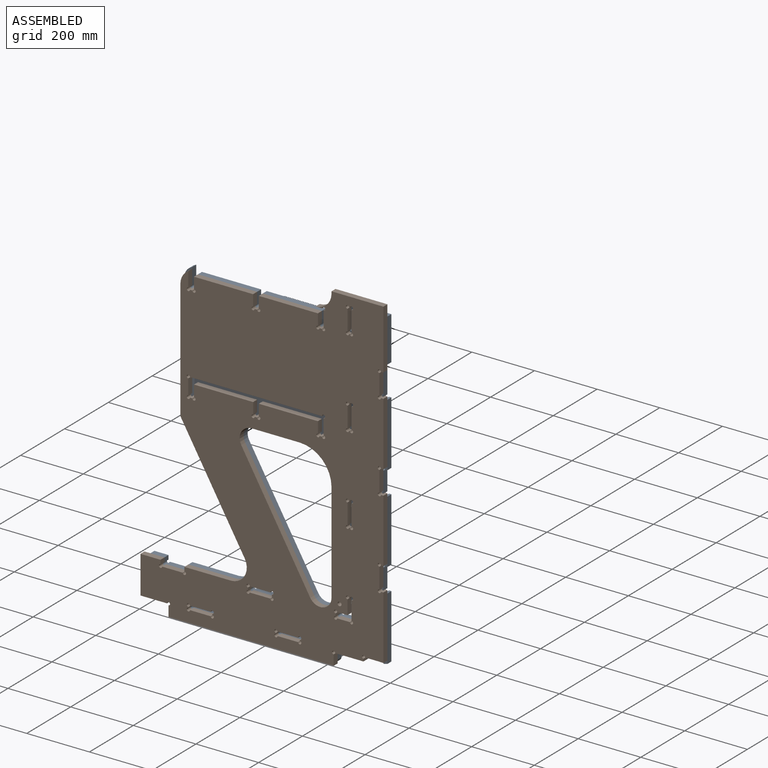
[diagram: assembled view]
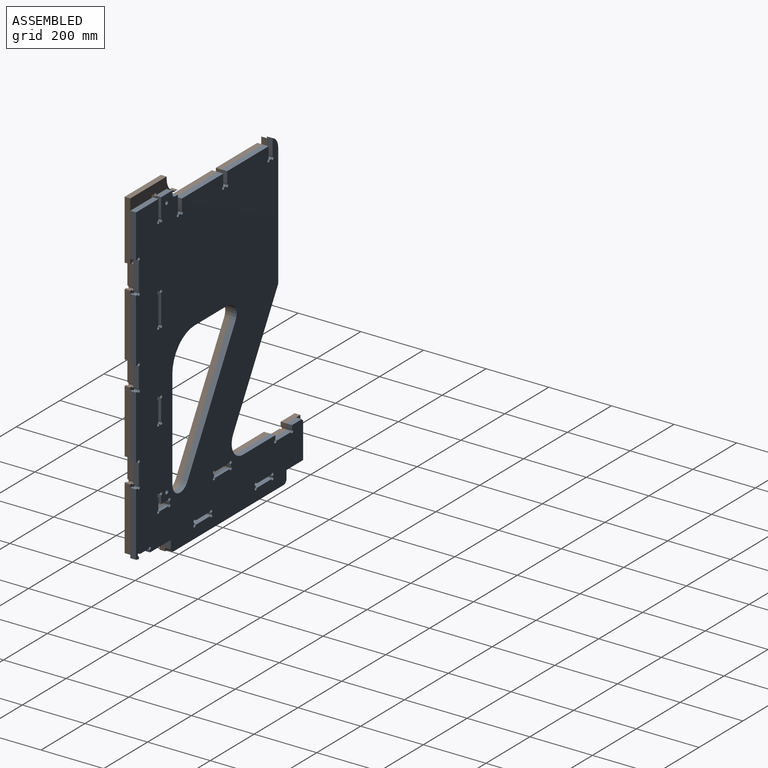
[diagram: assembled view, second angle]
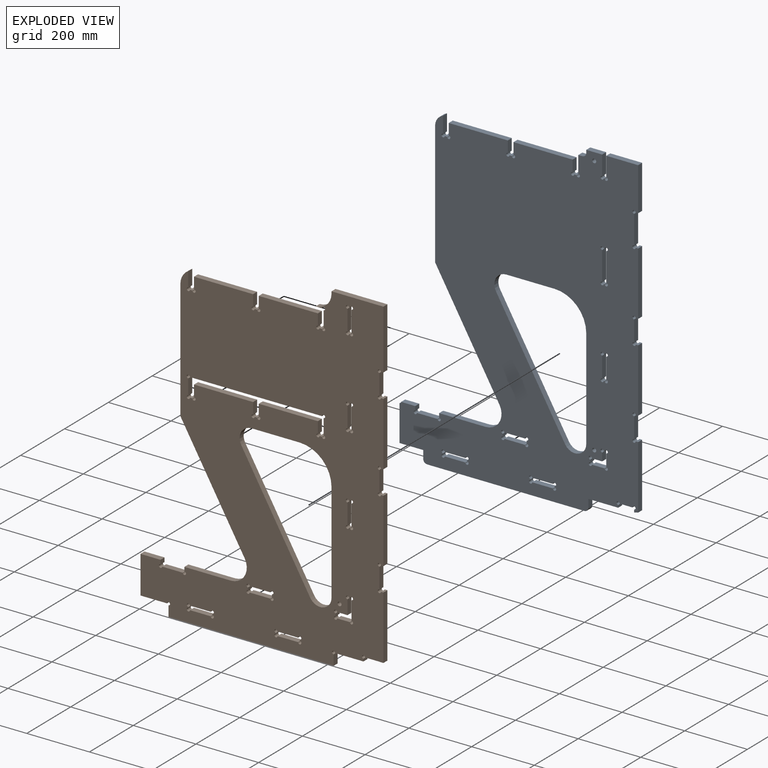
[diagram: exploded view]
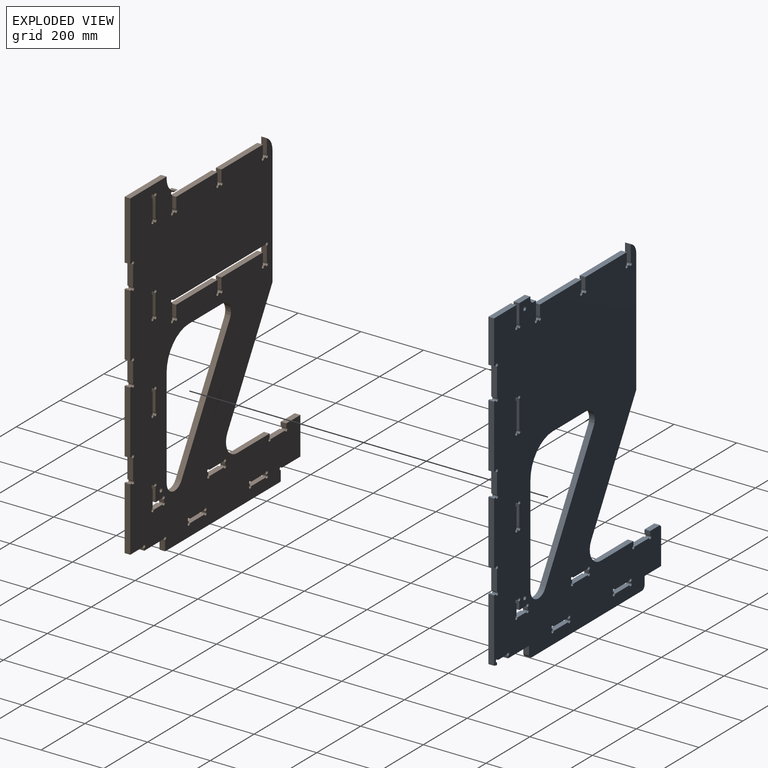
[diagram: exploded view, second angle]
ASSEMBLY  parts=2 mates=2
PART A: 133 faces, bbox 761.7x18.2x1043.4 mm
  f0: plane 381.88x220.48mm, normal (0.87,0,0.5), area 8030.6mm2, adj f38,f39,f71,f129
  f1: plane 18.21x2.79mm, normal (0,0,-1), area 50.9mm2, adj f38,f39,f103,f120
  f2: plane 91.44x18.21mm, normal (1,0,0), area 1665.3mm2, adj f38,f39,f102,f103
  f3: plane 18.21x2.79mm, normal (0,0,1), area 50.9mm2, adj f38,f39,f102,f108
  f4: plane 91.44x18.21mm, normal (-1,0,0), area 1665.3mm2, adj f38,f39,f108,f120
  f5: plane 18.21x2.79mm, normal (0,0,-1), area 50.9mm2, adj f38,f39,f116,f117
  f6: plane 66.04x18.21mm, normal (1,0,0), area 1202.7mm2, adj f38,f39,f117,f119
  f7: plane 18.21x2.79mm, normal (0,0,1), area 50.9mm2, adj f38,f39,f118,f119
  f8: plane 66.04x18.21mm, normal (-1,0,0), area 1202.7mm2, adj f38,f39,f116,f118
  f9: plane 66.04x18.21mm, normal (0,0,1), area 1202.7mm2, adj f38,f39,f90,f95
  f10: plane 18.21x2.79mm, normal (-1,0,0), area 50.9mm2, adj f38,f39,f90,f106
  f11: plane 66.04x18.21mm, normal (0,0,-1), area 1202.7mm2, adj f38,f39,f105,f106
  f12: plane 18.21x2.79mm, normal (1,0,0), area 50.9mm2, adj f38,f39,f95,f105
  f13: plane 18.21x7.87mm, normal (0,0,-1), area 143.4mm2, adj f38,f39,f51,f114
  f14: plane 91.44x18.21mm, normal (1,0,0), area 1665.3mm2, adj f38,f39,f113,f114
  f15: plane 66.04x18.21mm, normal (1,0,0), area 1202.7mm2, adj f38,f39,f86,f112
  f16: plane 66.04x18.21mm, normal (1,0,0), area 1202.7mm2, adj f38,f39,f91,f92
  f17: plane 18.21x7.87mm, normal (-1,0,0), area 143.4mm2, adj f38,f39,f60,f87
  f18: plane 40.64x18.21mm, normal (0,0,-1), area 740.1mm2, adj f38,f39,f87,f104
  f19: plane 18.21x2.79mm, normal (1,0,0), area 50.9mm2, adj f38,f39,f89,f101
  f20: plane 66.04x18.21mm, normal (0,0,1), area 1202.7mm2, adj f38,f39,f88,f89
  f21: plane 18.21x2.79mm, normal (-1,0,0), area 50.9mm2, adj f38,f39,f88,f111
  f22: plane 66.04x18.21mm, normal (0,0,-1), area 1202.7mm2, adj f38,f39,f101,f111
  f23: plane 18.21x2.79mm, normal (0,0,1), area 50.9mm2, adj f38,f39,f115,f121
  f24: plane 45.13x18.21mm, normal (0,0,1), area 821.8mm2, adj f38,f39,f64,f85
  f25: plane 66.04x18.21mm, normal (0,0,1), area 1202.7mm2, adj f38,f39,f82,f107
  f26: plane 18.21x8.05mm, normal (1,0,0), area 146.6mm2, adj f38,f39,f100,f110
  f27: plane 66.04x18.21mm, normal (0,0,1), area 1202.7mm2, adj f38,f39,f109,f110
  f28: plane 18.21x8.05mm, normal (-1,0,0), area 146.6mm2, adj f38,f39,f96,f109
  f29: plane 66.04x18.21mm, normal (0,0,-1), area 1202.7mm2, adj f38,f39,f96,f100
  f30: plane 38.77x18.21mm, normal (-1,0,0), area 706mm2, adj f38,f39,f84,f126
  f31: plane 18.21x2.79mm, normal (0,0,-1), area 50.9mm2, adj f38,f39,f83,f84
  f32: plane 32.77x18.21mm, normal (0,0,-1), area 596.7mm2, adj f38,f39,f72,f125
  f33: plane 18.21x8.05mm, normal (1,0,0), area 146.6mm2, adj f38,f39,f124,f125
  f34: plane 40.64x18.21mm, normal (0,0,1), area 740.1mm2, adj f38,f39,f124,f126
  f35: plane 18.21x8.05mm, normal (0,0,1), area 146.6mm2, adj f38,f39,f98,f123
  f36: plane 18.21x8.05mm, normal (0,0,1), area 146.6mm2, adj f38,f39,f99,f122
  f37: plane 18.21x8.05mm, normal (0,0,1), area 146.6mm2, adj f38,f39,f97,f127
  f38: plane 1043.44x761.66mm, normal (0,1,0), area 513310.2mm2, adj f0,f1,f2,f3,f4,f5,f6,f7
  f39: plane 1043.44x761.66mm, normal (0,-1,0), area 513310.2mm2, adj f0,f1,f2,f3,f4,f5,f6,f7
  f40: plane 355.6x205.31mm, normal (-0.87,0,-0.5), area 7478mm2, adj f38,f39,f67,f81
  f41: plane 18.21x12.7mm, normal (0,0,1), area 231.3mm2, adj f38,f39,f79,f130
  f42: plane 50.8x18.21mm, normal (0,0,1), area 925.2mm2, adj f38,f39,f61,f63
  f43: plane 101.85x18.21mm, normal (0,0,1), area 1854.9mm2, adj f38,f39,f51,f62
  f44: plane 114.99x18.21mm, normal (-1,0,0), area 2094.1mm2, adj f38,f39,f50,f85
  f45: plane 18.21x7.87mm, normal (1,0,0), area 143.4mm2, adj f38,f39,f46,f104
  f46: plane 95.25x18.21mm, normal (0,0,-1), area 1734.7mm2, adj f38,f39,f45,f47
  f47: plane 25.4x18.21mm, normal (1,0,0), area 462.6mm2, adj f38,f39,f46,f132
  f48: plane 501.65x18.21mm, normal (0,0,-1), area 9135.9mm2, adj f38,f39,f131,f132
  f49: plane 25.4x18.21mm, normal (-1,0,0), area 462.6mm2, adj f38,f39,f50,f131
  f50: plane 75.61x18.21mm, normal (0,0,-1), area 1376.9mm2, adj f38,f39,f44,f49
  f51: plane 138.69x18.21mm, normal (1,0,0), area 2525.8mm2, adj f13,f38,f39,f43
  f52: plane 18.21x7.87mm, normal (0,0,1), area 143.4mm2, adj f38,f39,f53,f113
  f53: plane 203.2x18.21mm, normal (1,0,0), area 3700.6mm2, adj f38,f39,f52,f54
  f54: plane 18.21x7.87mm, normal (0,0,-1), area 143.4mm2, adj f38,f39,f53,f112
  f55: plane 18.21x7.87mm, normal (0,0,1), area 143.4mm2, adj f38,f39,f56,f86
  f56: plane 203.2x18.21mm, normal (1,0,0), area 3700.6mm2, adj f38,f39,f55,f57
  f57: plane 18.21x7.87mm, normal (0,0,-1), area 143.4mm2, adj f38,f39,f56,f92
  f58: plane 18.21x7.87mm, normal (0,0,1), area 143.4mm2, adj f38,f39,f59,f91
  f59: plane 203.2x18.21mm, normal (1,0,0), area 3700.6mm2, adj f38,f39,f58,f60
  f60: plane 18.21x12.95mm, normal (0.23,0,-0.97), area 242.4mm2, adj f17,f38,f39,f59
  f61: plane 62.08x18.21mm, normal (1,0,0), area 1130.6mm2, adj f38,f39,f42,f115
  f62: plane 62.08x18.21mm, normal (-1,0,0), area 1130.6mm2, adj f38,f39,f43,f121
  f63: plane 18.21x8.98mm, normal (-1,0,0), area 163.4mm2, adj f38,f39,f42,f130
  f64: plane 18.21x13.13mm, normal (1,0,0), area 239.2mm2, adj f24,f38,f39,f107
  f65: plane 18.21x13.13mm, normal (-1,0,0), area 239.2mm2, adj f38,f39,f66,f82
  f66: plane 148.36x18.21mm, normal (0,0,1), area 2701.9mm2, adj f38,f39,f65,f81
  f67: plane 393.7x18.21mm, normal (-1,0,0), area 7170mm2, adj f38,f39,f40,f68
  f68: cylinder r=38.1mm len=35.92mm, axis (0,-1,0), area 854.1mm2, adj f38,f39,f67,f80
  f69: plane 319.26x18.21mm, normal (-1,0,0), area 5814.3mm2, adj f38,f39,f128,f129
  f70: plane 153.7x18.21mm, normal (0,0,-1), area 2799.1mm2, adj f38,f39,f71,f128
  f71: cylinder r=38.1mm len=57.15mm, axis (0,-1,0), area 1453.2mm2, adj f0,f38,f39,f70
  f72: plane 25.63x18.21mm, normal (1,0,0), area 466.9mm2, adj f32,f38,f39,f83
  f73: plane 36.2x18.21mm, normal (-1,0,0), area 659.2mm2, adj f38,f39,f74,f127
  f74: plane 188.58x18.21mm, normal (0,0,1), area 3434.4mm2, adj f38,f39,f73,f75
  f75: plane 36.2x18.21mm, normal (1,0,0), area 659.2mm2, adj f38,f39,f74,f98
  f76: plane 36.2x18.21mm, normal (-1,0,0), area 659.2mm2, adj f38,f39,f77,f123
  f77: plane 188.58x18.21mm, normal (0,0,1), area 3434.4mm2, adj f38,f39,f76,f78
  f78: plane 36.2x18.21mm, normal (1,0,0), area 659.2mm2, adj f38,f39,f77,f99
  f79: plane 54.41x18.21mm, normal (-1,0,0), area 990.8mm2, adj f38,f39,f41,f122
  f80: plane 52.23x18.21mm, normal (1,0,0), area 951.2mm2, adj f38,f39,f68,f97
  f81: cylinder r=50.8mm len=76.2mm, axis (0,-1,0), area 1937.6mm2, adj f38,f39,f40,f66
  f82: cylinder r=5.08mm len=18.21mm, axis (0,1,0), area 436mm2, adj f25,f38,f39,f65
  f83: cylinder r=5.08mm len=18.21mm, axis (0,1,0), area 436mm2, adj f31,f38,f39,f72
  f84: cylinder r=5.08mm len=18.21mm, axis (0,1,0), area 436mm2, adj f30,f31,f38,f39
  f85: cylinder r=5.08mm len=18.21mm, axis (0,1,0), area 145.3mm2, adj f24,f38,f39,f44
  f86: cylinder r=5.08mm len=18.21mm, axis (0,1,0), area 436mm2, adj f15,f38,f39,f55
  f87: cylinder r=5.08mm len=18.21mm, axis (0,1,0), area 436mm2, adj f17,f18,f38,f39
  f88: cylinder r=5.08mm len=18.21mm, axis (0,1,0), area 436mm2, adj f20,f21,f38,f39
  f89: cylinder r=5.08mm len=18.21mm, axis (0,1,0), area 436mm2, adj f19,f20,f38,f39
  f90: cylinder r=5.08mm len=18.21mm, axis (0,1,0), area 436mm2, adj f9,f10,f38,f39
  f91: cylinder r=5.08mm len=18.21mm, axis (0,1,0), area 436mm2, adj f16,f38,f39,f58
  f92: cylinder r=5.08mm len=18.21mm, axis (0,1,0), area 436mm2, adj f16,f38,f39,f57
  f93: cylinder r=6.35mm len=18.21mm, axis (0,1,0), area 726.6mm2, adj f38,f39
  f94: cylinder r=6.35mm len=18.21mm, axis (0,1,0), area 726.6mm2, adj f38,f39
  f95: cylinder r=5.08mm len=18.21mm, axis (0,1,0), area 436mm2, adj f9,f12,f38,f39
  f96: cylinder r=5.08mm len=18.21mm, axis (0,1,0), area 436mm2, adj f28,f29,f38,f39
  f97: cylinder r=5.08mm len=18.21mm, axis (0,1,0), area 436mm2, adj f37,f38,f39,f80
  f98: cylinder r=5.08mm len=18.21mm, axis (0,1,0), area 436mm2, adj f35,f38,f39,f75
  f99: cylinder r=5.08mm len=18.21mm, axis (0,1,0), area 436mm2, adj f36,f38,f39,f78
  f100: cylinder r=5.08mm len=18.21mm, axis (0,1,0), area 436mm2, adj f26,f29,f38,f39
  f101: cylinder r=5.08mm len=18.21mm, axis (0,1,0), area 436mm2, adj f19,f22,f38,f39
  f102: cylinder r=5.08mm len=18.21mm, axis (0,1,0), area 436mm2, adj f2,f3,f38,f39
  f103: cylinder r=5.08mm len=18.21mm, axis (0,1,0), area 436mm2, adj f1,f2,f38,f39
  f104: cylinder r=5.08mm len=18.21mm, axis (0,1,0), area 436mm2, adj f18,f38,f39,f45
  f105: cylinder r=5.08mm len=18.21mm, axis (0,1,0), area 436mm2, adj f11,f12,f38,f39
  f106: cylinder r=5.08mm len=18.21mm, axis (0,1,0), area 436mm2, adj f10,f11,f38,f39
  f107: cylinder r=5.08mm len=18.21mm, axis (0,1,0), area 436mm2, adj f25,f38,f39,f64
  f108: cylinder r=5.08mm len=18.21mm, axis (0,1,0), area 436mm2, adj f3,f4,f38,f39
  f109: cylinder r=5.08mm len=18.21mm, axis (0,1,0), area 436mm2, adj f27,f28,f38,f39
  f110: cylinder r=5.08mm len=18.21mm, axis (0,1,0), area 436mm2, adj f26,f27,f38,f39
  f111: cylinder r=5.08mm len=18.21mm, axis (0,1,0), area 436mm2, adj f21,f22,f38,f39
  f112: cylinder r=5.08mm len=18.21mm, axis (0,1,0), area 436mm2, adj f15,f38,f39,f54
  f113: cylinder r=5.08mm len=18.21mm, axis (0,1,0), area 436mm2, adj f14,f38,f39,f52
  f114: cylinder r=5.08mm len=18.21mm, axis (0,1,0), area 436mm2, adj f13,f14,f38,f39
  f115: cylinder r=5.08mm len=18.21mm, axis (0,1,0), area 436mm2, adj f23,f38,f39,f61
  f116: cylinder r=5.08mm len=18.21mm, axis (0,1,0), area 436mm2, adj f5,f8,f38,f39
  f117: cylinder r=5.08mm len=18.21mm, axis (0,1,0), area 436mm2, adj f5,f6,f38,f39
  f118: cylinder r=5.08mm len=18.21mm, axis (0,1,0), area 436mm2, adj f7,f8,f38,f39
  f119: cylinder r=5.08mm len=18.21mm, axis (0,1,0), area 436mm2, adj f6,f7,f38,f39
  f120: cylinder r=5.08mm len=18.21mm, axis (0,1,0), area 436mm2, adj f1,f4,f38,f39
  f121: cylinder r=5.08mm len=18.21mm, axis (0,1,0), area 436mm2, adj f23,f38,f39,f62
  f122: cylinder r=5.08mm len=18.21mm, axis (0,1,0), area 436mm2, adj f36,f38,f39,f79
  f123: cylinder r=5.08mm len=18.21mm, axis (0,1,0), area 436mm2, adj f35,f38,f39,f76
  f124: cylinder r=5.08mm len=18.21mm, axis (0,1,0), area 436mm2, adj f33,f34,f38,f39
  f125: cylinder r=5.08mm len=18.21mm, axis (0,1,0), area 436mm2, adj f32,f33,f38,f39
  f126: cylinder r=5.08mm len=18.21mm, axis (0,1,0), area 436mm2, adj f30,f34,f38,f39
  f127: cylinder r=5.08mm len=18.21mm, axis (0,1,0), area 436mm2, adj f37,f38,f39,f73
  f128: cylinder r=101.6mm len=101.6mm, axis (0,-1,0), area 2906.5mm2, adj f38,f39,f69,f70
  f129: cylinder r=36.34mm len=67.81mm, axis (0,-1,0), area 1732.7mm2, adj f0,f38,f39,f69
  f130: cylinder r=12.7mm len=18.21mm, axis (0,-1,0), area 363.3mm2, adj f38,f39,f41,f63
  f131: cylinder r=12.7mm len=18.21mm, axis (0,-1,0), area 363.3mm2, adj f38,f39,f48,f49
  f132: cylinder r=12.7mm len=18.21mm, axis (0,-1,0), area 363.3mm2, adj f38,f39,f47,f48
PART B: 153 faces, bbox 775.6x1078.8x18.2 mm
  f0: plane 1078.85x775.58mm, normal (0,0,1), area 510672.6mm2, adj f2,f3,f4,f5,f6,f7,f8,f9
  f1: plane 1078.85x775.58mm, normal (0,0,-1), area 510672.6mm2, adj f2,f3,f4,f5,f6,f7,f8,f9
  f2: plane 319.26x18.21mm, normal (1,0,0), area 5814.3mm2, adj f0,f1,f62,f67
  f3: plane 148.36x18.21mm, normal (0,1,0), area 2701.9mm2, adj f0,f1,f34,f70
  f4: plane 120.07x18.21mm, normal (1,0,0), area 2186.6mm2, adj f0,f1,f27,f29
  f5: plane 165.61x18.21mm, normal (0,1,0), area 3016mm2, adj f0,f1,f26,f30
  f6: plane 33.02x18.21mm, normal (1,0,0), area 601.4mm2, adj f0,f1,f7,f144
  f7: plane 527.05x18.21mm, normal (0,-1,0), area 9598.5mm2, adj f0,f1,f6,f8
  f8: plane 33.02x18.21mm, normal (-1,0,0), area 601.4mm2, adj f0,f1,f7,f152
  f9: plane 90.17x18.21mm, normal (0,-1,0), area 1642.2mm2, adj f0,f1,f10,f152
  f10: plane 18.21x7.87mm, normal (-1,0,0), area 143.4mm2, adj f0,f1,f9,f151
  f11: plane 45.72x18.21mm, normal (0,-1,0), area 832.6mm2, adj f0,f1,f12,f151
  f12: plane 18.21x0.25mm, normal (1,0,0), area 4.6mm2, adj f0,f1,f11,f13
  f13: plane 18.21x12.95mm, normal (0,-1,0), area 235.9mm2, adj f0,f1,f12,f14
  f14: plane 203.2x18.21mm, normal (-1,0,0), area 3700.6mm2, adj f0,f1,f13,f15
  f15: plane 18.21x7.87mm, normal (0,1,0), area 143.4mm2, adj f0,f1,f14,f150
  f16: plane 66.04x18.21mm, normal (-1,0,0), area 1202.7mm2, adj f0,f1,f149,f150
  f17: plane 18.21x7.87mm, normal (0,-1,0), area 143.4mm2, adj f0,f1,f18,f149
  f18: plane 203.2x18.21mm, normal (-1,0,0), area 3700.6mm2, adj f0,f1,f17,f19
  f19: plane 18.21x7.87mm, normal (0,1,0), area 143.4mm2, adj f0,f1,f18,f148
  f20: plane 66.04x18.21mm, normal (-1,0,0), area 1202.7mm2, adj f0,f1,f147,f148
  f21: plane 18.21x7.87mm, normal (0,-1,0), area 143.4mm2, adj f0,f1,f22,f147
  f22: plane 203.2x18.21mm, normal (-1,0,0), area 3700.6mm2, adj f0,f1,f21,f23
  f23: plane 18.21x7.87mm, normal (0,1,0), area 143.4mm2, adj f0,f1,f22,f146
  f24: plane 66.04x18.21mm, normal (-1,0,0), area 1202.7mm2, adj f0,f1,f145,f146
  f25: plane 18.21x7.87mm, normal (0,-1,0), area 143.4mm2, adj f0,f1,f26,f145
  f26: plane 189.85x18.21mm, normal (-1,0,0), area 3457.4mm2, adj f0,f1,f5,f25
  f27: plane 84.45x18.21mm, normal (0,-1,0), area 1538mm2, adj f0,f1,f4,f144
  f28: plane 18.21x13.13mm, normal (-1,0,0), area 239.2mm2, adj f0,f1,f29,f140
  f29: plane 64.13x18.21mm, normal (0,1,0), area 1167.9mm2, adj f0,f1,f4,f28
  f30: plane 18.21x6.28mm, normal (1,0,0), area 114.4mm2, adj f0,f1,f5,f71
  f31: plane 18.21x8.05mm, normal (1,0,0), area 146.6mm2, adj f0,f1,f114,f143
  f32: plane 66.04x18.21mm, normal (0,1,0), area 1202.7mm2, adj f0,f1,f142,f143
  f33: plane 18.21x8.05mm, normal (-1,0,0), area 146.6mm2, adj f0,f1,f113,f142
  f34: plane 18.21x13.13mm, normal (1,0,0), area 239.2mm2, adj f0,f1,f3,f141
  f35: plane 66.04x18.21mm, normal (0,1,0), area 1202.7mm2, adj f0,f1,f140,f141
  f36: plane 32.77x18.21mm, normal (0,-1,0), area 596.7mm2, adj f0,f1,f37,f136
  f37: plane 45.72x18.21mm, normal (-1,0,0), area 832.6mm2, adj f0,f1,f36,f139
  f38: plane 18.21x2.79mm, normal (0,-1,0), area 50.9mm2, adj f0,f1,f138,f139
  f39: plane 58.85x18.21mm, normal (1,0,0), area 1071.8mm2, adj f0,f1,f137,f138
  f40: plane 40.64x18.21mm, normal (0,1,0), area 740.1mm2, adj f0,f1,f135,f137
  f41: plane 18.21x8.05mm, normal (-1,0,0), area 146.6mm2, adj f0,f1,f135,f136
  f42: plane 18.21x2.79mm, normal (0,1,0), area 50.9mm2, adj f0,f1,f132,f134
  f43: plane 66.04x18.21mm, normal (-1,0,0), area 1202.7mm2, adj f0,f1,f133,f134
  f44: plane 18.21x2.79mm, normal (0,-1,0), area 50.9mm2, adj f0,f1,f131,f133
  f45: plane 66.04x18.21mm, normal (1,0,0), area 1202.7mm2, adj f0,f1,f131,f132
  f46: plane 18.21x2.79mm, normal (0,1,0), area 50.9mm2, adj f0,f1,f127,f130
  f47: plane 66.04x18.21mm, normal (-1,0,0), area 1202.7mm2, adj f0,f1,f129,f130
  f48: plane 18.21x2.79mm, normal (0,-1,0), area 50.9mm2, adj f0,f1,f128,f129
  f49: plane 66.04x18.21mm, normal (1,0,0), area 1202.7mm2, adj f0,f1,f127,f128
  f50: plane 18.21x2.79mm, normal (-1,0,0), area 50.9mm2, adj f0,f1,f124,f126
  f51: plane 66.04x18.21mm, normal (0,-1,0), area 1202.7mm2, adj f0,f1,f125,f126
  f52: plane 18.21x2.79mm, normal (1,0,0), area 50.9mm2, adj f0,f1,f123,f125
  f53: plane 66.04x18.21mm, normal (0,1,0), area 1202.7mm2, adj f0,f1,f123,f124
  f54: plane 66.04x18.21mm, normal (0,1,0), area 1202.7mm2, adj f0,f1,f119,f122
  f55: plane 18.21x2.79mm, normal (-1,0,0), area 50.9mm2, adj f0,f1,f121,f122
  f56: plane 66.04x18.21mm, normal (0,-1,0), area 1202.7mm2, adj f0,f1,f120,f121
  f57: plane 18.21x2.79mm, normal (1,0,0), area 50.9mm2, adj f0,f1,f119,f120
  f58: plane 66.04x18.21mm, normal (1,0,0), area 1202.7mm2, adj f0,f1,f115,f118
  f59: plane 18.21x2.79mm, normal (0,1,0), area 50.9mm2, adj f0,f1,f117,f118
  f60: plane 66.04x18.21mm, normal (-1,0,0), area 1202.7mm2, adj f0,f1,f116,f117
  f61: plane 18.21x2.79mm, normal (0,-1,0), area 50.9mm2, adj f0,f1,f115,f116
  f62: cylinder r=36.34mm len=67.81mm, axis (0,0,-1), area 1732.7mm2, adj f0,f1,f2,f64
  f63: plane 66.04x18.21mm, normal (0,-1,0), area 1202.7mm2, adj f0,f1,f113,f114
  f64: plane 381.88x220.48mm, normal (-0.87,0.5,0), area 8030.6mm2, adj f0,f1,f62,f65
  f65: cylinder r=38.1mm len=57.15mm, axis (0,0,-1), area 1453.2mm2, adj f0,f1,f64,f66
  f66: plane 153.7x18.21mm, normal (0,-1,0), area 2799.1mm2, adj f0,f1,f65,f67
  f67: cylinder r=101.6mm len=101.6mm, axis (0,0,-1), area 2906.5mm2, adj f0,f1,f2,f66
  f68: plane 381x18.21mm, normal (1,0,0), area 6938.7mm2, adj f0,f1,f69,f72
  f69: plane 355.6x205.31mm, normal (0.87,-0.5,0), area 7478mm2, adj f0,f1,f68,f70
  f70: cylinder r=50.8mm len=76.2mm, axis (0,0,-1), area 1937.6mm2, adj f0,f1,f3,f69
  f71: cylinder r=50.8mm len=50.8mm, axis (0,0,1), area 1453.2mm2, adj f0,f1,f30,f83
  f72: cylinder r=50.8mm len=43.99mm, axis (0,0,-1), area 968.8mm2, adj f0,f1,f68,f84
  f73: plane 49.33x18.21mm, normal (1,0,0), area 898.3mm2, adj f0,f1,f107,f112
  f74: plane 18.21x8.05mm, normal (0,1,0), area 146.6mm2, adj f0,f1,f111,f112
  f75: plane 36.2x18.21mm, normal (-1,0,0), area 659.2mm2, adj f0,f1,f76,f111
  f76: plane 188.58x18.21mm, normal (0,1,0), area 3434.4mm2, adj f0,f1,f75,f77
  f77: plane 36.2x18.21mm, normal (1,0,0), area 659.2mm2, adj f0,f1,f76,f110
  f78: plane 18.21x8.05mm, normal (0,1,0), area 146.6mm2, adj f0,f1,f109,f110
  f79: plane 36.2x18.21mm, normal (-1,0,0), area 659.2mm2, adj f0,f1,f80,f109
  f80: plane 188.58x18.21mm, normal (0,1,0), area 3434.4mm2, adj f0,f1,f79,f81
  f81: plane 36.2x18.21mm, normal (1,0,0), area 659.2mm2, adj f0,f1,f80,f108
  f82: plane 18.21x8.05mm, normal (0,1,0), area 146.6mm2, adj f0,f1,f106,f108
  f83: plane 20.32x18.21mm, normal (0,-1,0), area 370.1mm2, adj f0,f1,f71,f107
  f84: plane 47.6x18.21mm, normal (-1,0,0), area 866.9mm2, adj f0,f1,f72,f106
  f85: plane 36.2x18.21mm, normal (-1,0,0), area 659.2mm2, adj f0,f1,f86,f98
  f86: plane 188.58x18.21mm, normal (0,1,0), area 3434.4mm2, adj f0,f1,f85,f87
  f87: plane 36.2x18.21mm, normal (1,0,0), area 659.2mm2, adj f0,f1,f86,f105
  f88: plane 18.21x8.05mm, normal (0,1,0), area 146.6mm2, adj f0,f1,f104,f105
  f89: plane 49.33x18.21mm, normal (-1,0,0), area 898.3mm2, adj f0,f1,f103,f104
  f90: plane 421.64x18.21mm, normal (0,-1,0), area 7678.8mm2, adj f0,f1,f102,f103
  f91: plane 49.33x18.21mm, normal (1,0,0), area 898.3mm2, adj f0,f1,f101,f102
  f92: plane 18.21x8.05mm, normal (0,1,0), area 146.6mm2, adj f0,f1,f100,f101
  f93: plane 36.2x18.21mm, normal (-1,0,0), area 659.2mm2, adj f0,f1,f94,f100
  f94: plane 188.58x18.21mm, normal (0,1,0), area 3434.4mm2, adj f0,f1,f93,f95
  f95: plane 36.2x18.21mm, normal (1,0,0), area 659.2mm2, adj f0,f1,f94,f99
  f96: plane 18.21x8.05mm, normal (0,1,0), area 146.6mm2, adj f0,f1,f98,f99
  f97: cylinder r=6.35mm len=18.21mm, axis (0,0,1), area 726.6mm2, adj f0,f1
  f98: cylinder r=5.08mm len=18.21mm, axis (0,0,1), area 436mm2, adj f0,f1,f85,f96
  f99: cylinder r=5.08mm len=18.21mm, axis (0,0,1), area 436mm2, adj f0,f1,f95,f96
  f100: cylinder r=5.08mm len=18.21mm, axis (0,0,1), area 436mm2, adj f0,f1,f92,f93
  f101: cylinder r=5.08mm len=18.21mm, axis (0,0,1), area 436mm2, adj f0,f1,f91,f92
  f102: cylinder r=5.08mm len=18.21mm, axis (0,0,1), area 436mm2, adj f0,f1,f90,f91
  f103: cylinder r=5.08mm len=18.21mm, axis (0,0,1), area 436mm2, adj f0,f1,f89,f90
  f104: cylinder r=5.08mm len=18.21mm, axis (0,0,1), area 436mm2, adj f0,f1,f88,f89
  f105: cylinder r=5.08mm len=18.21mm, axis (0,0,1), area 436mm2, adj f0,f1,f87,f88
  f106: cylinder r=5.08mm len=18.21mm, axis (0,0,1), area 436mm2, adj f0,f1,f82,f84
  f107: cylinder r=5.08mm len=18.21mm, axis (0,0,1), area 436mm2, adj f0,f1,f73,f83
  f108: cylinder r=5.08mm len=18.21mm, axis (0,0,1), area 436mm2, adj f0,f1,f81,f82
  f109: cylinder r=5.08mm len=18.21mm, axis (0,0,1), area 436mm2, adj f0,f1,f78,f79
  f110: cylinder r=5.08mm len=18.21mm, axis (0,0,1), area 436mm2, adj f0,f1,f77,f78
  f111: cylinder r=5.08mm len=18.21mm, axis (0,0,1), area 436mm2, adj f0,f1,f74,f75
  f112: cylinder r=5.08mm len=18.21mm, axis (0,0,1), area 436mm2, adj f0,f1,f73,f74
  f113: cylinder r=5.08mm len=18.21mm, axis (0,0,1), area 436mm2, adj f0,f1,f33,f63
  f114: cylinder r=5.08mm len=18.21mm, axis (0,0,1), area 436mm2, adj f0,f1,f31,f63
  f115: cylinder r=5.08mm len=18.21mm, axis (0,0,1), area 436mm2, adj f0,f1,f58,f61
  f116: cylinder r=5.08mm len=18.21mm, axis (0,0,1), area 436mm2, adj f0,f1,f60,f61
  f117: cylinder r=5.08mm len=18.21mm, axis (0,0,1), area 436mm2, adj f0,f1,f59,f60
  f118: cylinder r=5.08mm len=18.21mm, axis (0,0,1), area 436mm2, adj f0,f1,f58,f59
  f119: cylinder r=5.08mm len=18.21mm, axis (0,0,1), area 436mm2, adj f0,f1,f54,f57
  f120: cylinder r=5.08mm len=18.21mm, axis (0,0,1), area 436mm2, adj f0,f1,f56,f57
  f121: cylinder r=5.08mm len=18.21mm, axis (0,0,1), area 436mm2, adj f0,f1,f55,f56
  f122: cylinder r=5.08mm len=18.21mm, axis (0,0,1), area 436mm2, adj f0,f1,f54,f55
  f123: cylinder r=5.08mm len=18.21mm, axis (0,0,1), area 436mm2, adj f0,f1,f52,f53
  f124: cylinder r=5.08mm len=18.21mm, axis (0,0,1), area 436mm2, adj f0,f1,f50,f53
  f125: cylinder r=5.08mm len=18.21mm, axis (0,0,1), area 436mm2, adj f0,f1,f51,f52
  f126: cylinder r=5.08mm len=18.21mm, axis (0,0,1), area 436mm2, adj f0,f1,f50,f51
  f127: cylinder r=5.08mm len=18.21mm, axis (0,0,1), area 436mm2, adj f0,f1,f46,f49
  f128: cylinder r=5.08mm len=18.21mm, axis (0,0,1), area 436mm2, adj f0,f1,f48,f49
  f129: cylinder r=5.08mm len=18.21mm, axis (0,0,1), area 436mm2, adj f0,f1,f47,f48
  f130: cylinder r=5.08mm len=18.21mm, axis (0,0,1), area 436mm2, adj f0,f1,f46,f47
  f131: cylinder r=5.08mm len=18.21mm, axis (0,0,1), area 436mm2, adj f0,f1,f44,f45
  f132: cylinder r=5.08mm len=18.21mm, axis (0,0,1), area 436mm2, adj f0,f1,f42,f45
  f133: cylinder r=5.08mm len=18.21mm, axis (0,0,1), area 436mm2, adj f0,f1,f43,f44
  f134: cylinder r=5.08mm len=18.21mm, axis (0,0,1), area 436mm2, adj f0,f1,f42,f43
  f135: cylinder r=5.08mm len=18.21mm, axis (0,0,1), area 436mm2, adj f0,f1,f40,f41
  f136: cylinder r=5.08mm len=18.21mm, axis (0,0,1), area 436mm2, adj f0,f1,f36,f41
  f137: cylinder r=5.08mm len=18.21mm, axis (0,0,1), area 436mm2, adj f0,f1,f39,f40
  f138: cylinder r=5.08mm len=18.21mm, axis (0,0,1), area 436mm2, adj f0,f1,f38,f39
  f139: cylinder r=5.08mm len=18.21mm, axis (0,0,1), area 436mm2, adj f0,f1,f37,f38
  f140: cylinder r=5.08mm len=18.21mm, axis (0,0,1), area 436mm2, adj f0,f1,f28,f35
  f141: cylinder r=5.08mm len=18.21mm, axis (0,0,1), area 436mm2, adj f0,f1,f34,f35
  f142: cylinder r=5.08mm len=18.21mm, axis (0,0,1), area 436mm2, adj f0,f1,f32,f33
  f143: cylinder r=5.08mm len=18.21mm, axis (0,0,1), area 436mm2, adj f0,f1,f31,f32
  f144: cylinder r=5.08mm len=18.21mm, axis (0,0,1), area 436mm2, adj f0,f1,f6,f27
  f145: cylinder r=5.08mm len=18.21mm, axis (0,0,1), area 436mm2, adj f0,f1,f24,f25
  f146: cylinder r=5.08mm len=18.21mm, axis (0,0,1), area 436mm2, adj f0,f1,f23,f24
  f147: cylinder r=5.08mm len=18.21mm, axis (0,0,1), area 436mm2, adj f0,f1,f20,f21
  f148: cylinder r=5.08mm len=18.21mm, axis (0,0,1), area 436mm2, adj f0,f1,f19,f20
  f149: cylinder r=5.08mm len=18.21mm, axis (0,0,1), area 436mm2, adj f0,f1,f16,f17
  f150: cylinder r=5.08mm len=18.21mm, axis (0,0,1), area 436mm2, adj f0,f1,f15,f16
  f151: cylinder r=5.08mm len=18.21mm, axis (0,0,1), area 436mm2, adj f0,f1,f10,f11
  f152: cylinder r=5.08mm len=18.21mm, axis (0,0,1), area 436mm2, adj f0,f1,f8,f9
PLACE A t=(1458.7,403.79,-227.27)mm
PLACE B rot(axis=(0,-0.71,-0.71),180deg) t=(1444.78,367.37,-191.87)mm
MATE planar B.f0 <-> A.f39  axis (0,1,0) through (684.08,385.58,-124.12)mm
MATE planar B.f18 <-> A.f56  axis (1,0,0) through (1001.16,376.48,-229.31)mm
